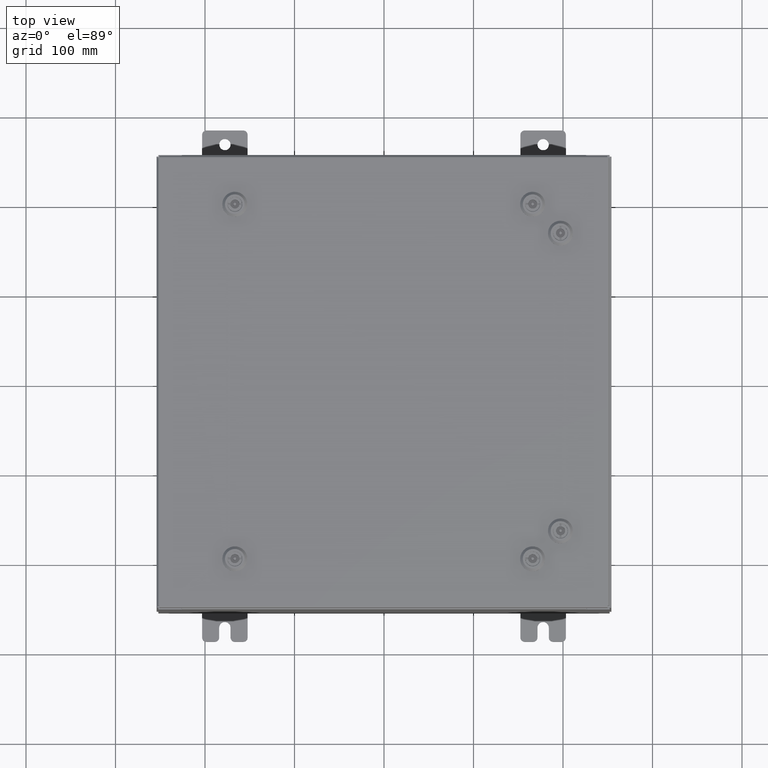
[diagram: clean part render]
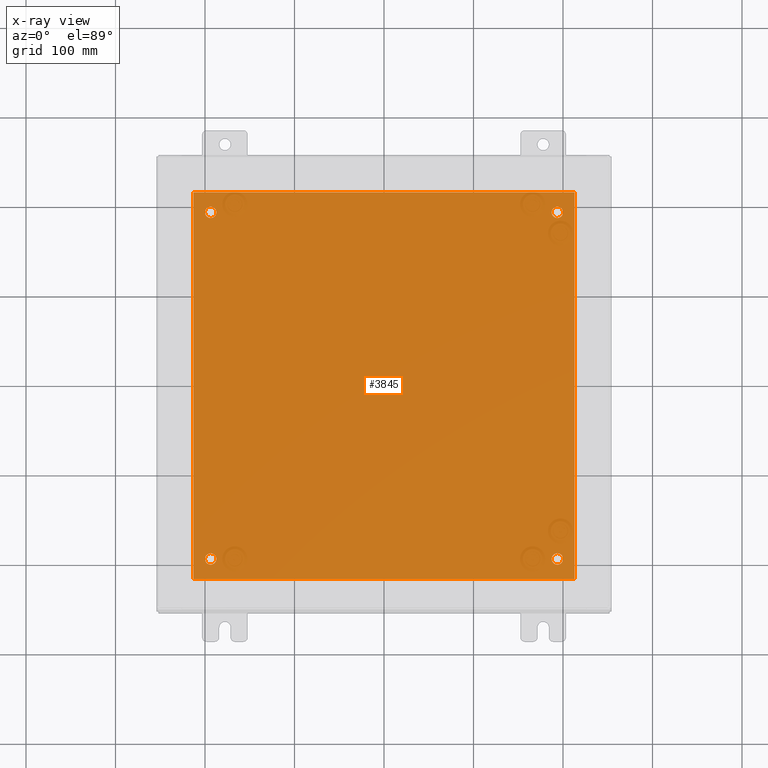
[diagram: x-ray — body ghosted, one internal face saturated and labeled with its STEP entity id]
A machine part, top view, then the same camera in x-ray: the body is ghosted and one INTERNAL B-rep face — a face not visible from any outside direction — is saturated and labeled: STEP entity #3845.
In plain terms, the highlighted planar face has unit normal (0, 0, -1).
Its self-contained STEP definition (entity closure, byte-faithful):
#1960 = EDGE_CURVE ( 'NONE', #34424, #33227, #6848, .T. ) ;
#2134 = CIRCLE ( 'NONE', #51458, 0.2499999999999987000 ) ;
#2156 = EDGE_LOOP ( 'NONE', ( #32737, #52601 ) ) ;
#3088 = CARTESIAN_POINT ( 'NONE',  ( 7.875000000000000900, -7.625000000000000900, -0.1039999999999999800 ) ) ;
#3444 = DIRECTION ( 'NONE',  ( -1.000000000000000000, 0.0000000000000000000, 0.0000000000000000000 ) ) ;
#3471 = AXIS2_PLACEMENT_3D ( 'NONE', #53140, #8552, #42832 ) ;
#3845 = ADVANCED_FACE ( 'NONE', ( #60384, #21230, #22783, #34271, #47393 ), #43288, .T. ) ;
#4306 = DIRECTION ( 'NONE',  ( -1.000000000000000000, 0.0000000000000000000, 0.0000000000000000000 ) ) ;
#6336 = EDGE_CURVE ( 'NONE', #9082, #60980, #20319, .T. ) ;
#6848 = LINE ( 'NONE', #8691, #31334 ) ;
#6980 = EDGE_CURVE ( 'NONE', #30985, #60944, #29466, .T. ) ;
#7672 = VERTEX_POINT ( 'NONE', #30734 ) ;
#7954 = CARTESIAN_POINT ( 'NONE',  ( -8.382999999999999100, 8.500000000000000000, -0.1039999999999998100 ) ) ;
#8363 = AXIS2_PLACEMENT_3D ( 'NONE', #44407, #15019, #49378 ) ;
#8552 = DIRECTION ( 'NONE',  ( -0.0000000000000000000, -0.0000000000000000000, 1.000000000000000000 ) ) ;
#8691 = CARTESIAN_POINT ( 'NONE',  ( -8.500000000000000000, 8.500000000000000000, -0.1039999999999999800 ) ) ;
#9082 = VERTEX_POINT ( 'NONE', #57461 ) ;
#9147 = ORIENTED_EDGE ( 'NONE', *, *, #9523, .F. ) ;
#9523 = EDGE_CURVE ( 'NONE', #33880, #34424, #29412, .T. ) ;
#10133 = ORIENTED_EDGE ( 'NONE', *, *, #43338, .T. ) ;
#10751 = ORIENTED_EDGE ( 'NONE', *, *, #31140, .F. ) ;
#12454 = EDGE_LOOP ( 'NONE', ( #43379, #10751, #43217, #9147 ) ) ;
#12856 = DIRECTION ( 'NONE',  ( 0.0000000000000000000, -1.000000000000000000, 0.0000000000000000000 ) ) ;
#15019 = DIRECTION ( 'NONE',  ( -0.0000000000000000000, -0.0000000000000000000, 1.000000000000000000 ) ) ;
#15765 = ORIENTED_EDGE ( 'NONE', *, *, #45169, .T. ) ;
#15879 = CARTESIAN_POINT ( 'NONE',  ( 7.875000000000000900, 7.625000000000000900, -0.1039999999999999800 ) ) ;
#15894 = CARTESIAN_POINT ( 'NONE',  ( -7.625000000000001800, -7.625000000000000900, -0.1039999999999999800 ) ) ;
#16401 = VECTOR ( 'NONE', #35081, 39.37007874015748100 ) ;
#19961 = EDGE_CURVE ( 'NONE', #60980, #9082, #2134, .T. ) ;
#20297 = CARTESIAN_POINT ( 'NONE',  ( 8.383000000000000900, -8.499999999999998200, -0.1039999999999998100 ) ) ;
#20319 = CIRCLE ( 'NONE', #50093, 0.2499999999999987000 ) ;
#20654 = VERTEX_POINT ( 'NONE', #63489 ) ;
#20740 = EDGE_CURVE ( 'NONE', #45754, #20654, #45801, .T. ) ;
#20794 = DIRECTION ( 'NONE',  ( -1.000000000000000000, 0.0000000000000000000, 0.0000000000000000000 ) ) ;
#21017 = AXIS2_PLACEMENT_3D ( 'NONE', #15894, #50224, #20794 ) ;
#21230 = FACE_BOUND ( 'NONE', #2156, .T. ) ;
#21891 = CARTESIAN_POINT ( 'NONE',  ( -7.625000000000001800, -7.625000000000000900, -0.1039999999999999800 ) ) ;
#22250 = CARTESIAN_POINT ( 'NONE',  ( 7.625000000000001800, 7.625000000000000900, -0.1039999999999999800 ) ) ;
#22321 = EDGE_CURVE ( 'NONE', #49553, #7672, #31837, .T. ) ;
#22332 = ORIENTED_EDGE ( 'NONE', *, *, #22321, .T. ) ;
#22783 = FACE_BOUND ( 'NONE', #62278, .T. ) ;
#23065 = EDGE_CURVE ( 'NONE', #31189, #33880, #24887, .T. ) ;
#23280 = DIRECTION ( 'NONE',  ( -0.0000000000000000000, -0.0000000000000000000, 1.000000000000000000 ) ) ;
#23340 = VECTOR ( 'NONE', #62691, 39.37007874015748100 ) ;
#24268 = DIRECTION ( 'NONE',  ( -1.000000000000000000, -0.0000000000000000000, -0.0000000000000000000 ) ) ;
#24887 = LINE ( 'NONE', #57980, #23340 ) ;
#26743 = CIRCLE ( 'NONE', #44553, 0.2499999999999987000 ) ;
#26802 = DIRECTION ( 'NONE',  ( -1.000000000000000000, 0.0000000000000000000, 0.0000000000000000000 ) ) ;
#26895 = EDGE_CURVE ( 'NONE', #7672, #49553, #36800, .T. ) ;
#27172 = DIRECTION ( 'NONE',  ( -1.000000000000000000, 0.0000000000000000000, 0.0000000000000000000 ) ) ;
#29412 = LINE ( 'NONE', #20297, #16401 ) ;
#29466 = CIRCLE ( 'NONE', #54219, 0.2499999999999998100 ) ;
#30734 = CARTESIAN_POINT ( 'NONE',  ( -7.375000000000001800, 7.625000000000000900, -0.1039999999999999800 ) ) ;
#30985 = VERTEX_POINT ( 'NONE', #55531 ) ;
#31140 = EDGE_CURVE ( 'NONE', #33227, #31189, #47443, .T. ) ;
#31189 = VERTEX_POINT ( 'NONE', #52312 ) ;
#31334 = VECTOR ( 'NONE', #24268, 39.37007874015748100 ) ;
#31837 = CIRCLE ( 'NONE', #3471, 0.2499999999999998100 ) ;
#32737 = ORIENTED_EDGE ( 'NONE', *, *, #19961, .T. ) ;
#32744 = DIRECTION ( 'NONE',  ( -0.0000000000000000000, -0.0000000000000000000, 1.000000000000000000 ) ) ;
#33227 = VERTEX_POINT ( 'NONE', #50144 ) ;
#33362 = DIRECTION ( 'NONE',  ( 0.0000000000000000000, 0.0000000000000000000, -1.000000000000000000 ) ) ;
#33609 = DIRECTION ( 'NONE',  ( -0.0000000000000000000, -0.0000000000000000000, 1.000000000000000000 ) ) ;
#33880 = VERTEX_POINT ( 'NONE', #36815 ) ;
#34271 = FACE_BOUND ( 'NONE', #56132, .T. ) ;
#34316 = VECTOR ( 'NONE', #12856, 39.37007874015748100 ) ;
#34424 = VERTEX_POINT ( 'NONE', #38267 ) ;
#35081 = DIRECTION ( 'NONE',  ( 0.0000000000000000000, 1.000000000000000000, 0.0000000000000000000 ) ) ;
#36800 = CIRCLE ( 'NONE', #53338, 0.2499999999999998100 ) ;
#36815 = CARTESIAN_POINT ( 'NONE',  ( 8.383000000000000900, -8.499999999999998200, -0.1039999999999999800 ) ) ;
#37451 = EDGE_LOOP ( 'NONE', ( #62487, #10133 ) ) ;
#37656 = AXIS2_PLACEMENT_3D ( 'NONE', #52950, #33362, #53165 ) ;
#38267 = CARTESIAN_POINT ( 'NONE',  ( 8.383000000000000900, 8.500000000000000000, -0.1039999999999999800 ) ) ;
#38366 = CIRCLE ( 'NONE', #21017, 0.2499999999999998100 ) ;
#38892 = CARTESIAN_POINT ( 'NONE',  ( -7.875000000000001800, 7.625000000000000900, -0.1039999999999999800 ) ) ;
#41637 = CARTESIAN_POINT ( 'NONE',  ( -7.875000000000001800, -7.625000000000000900, -0.1039999999999999800 ) ) ;
#42832 = DIRECTION ( 'NONE',  ( -1.000000000000000000, 0.0000000000000000000, 0.0000000000000000000 ) ) ;
#43217 = ORIENTED_EDGE ( 'NONE', *, *, #1960, .F. ) ;
#43288 = PLANE ( 'NONE',  #37656 ) ;
#43338 = EDGE_CURVE ( 'NONE', #60944, #30985, #38366, .T. ) ;
#43379 = ORIENTED_EDGE ( 'NONE', *, *, #23065, .F. ) ;
#44407 = CARTESIAN_POINT ( 'NONE',  ( 7.625000000000001800, 7.625000000000000900, -0.1039999999999999800 ) ) ;
#44553 = AXIS2_PLACEMENT_3D ( 'NONE', #22250, #56598, #27172 ) ;
#44900 = ORIENTED_EDGE ( 'NONE', *, *, #20740, .T. ) ;
#45169 = EDGE_CURVE ( 'NONE', #20654, #45754, #26743, .T. ) ;
#45754 = VERTEX_POINT ( 'NONE', #15879 ) ;
#45801 = CIRCLE ( 'NONE', #8363, 0.2499999999999987000 ) ;
#47393 = FACE_OUTER_BOUND ( 'NONE', #12454, .T. ) ;
#47443 = LINE ( 'NONE', #7954, #34316 ) ;
#47694 = ORIENTED_EDGE ( 'NONE', *, *, #26895, .T. ) ;
#49378 = DIRECTION ( 'NONE',  ( -1.000000000000000000, 0.0000000000000000000, 0.0000000000000000000 ) ) ;
#49553 = VERTEX_POINT ( 'NONE', #38892 ) ;
#50093 = AXIS2_PLACEMENT_3D ( 'NONE', #62161, #32744, #3444 ) ;
#50144 = CARTESIAN_POINT ( 'NONE',  ( -8.382999999999999100, 8.500000000000000000, -0.1039999999999998100 ) ) ;
#50224 = DIRECTION ( 'NONE',  ( -0.0000000000000000000, -0.0000000000000000000, 1.000000000000000000 ) ) ;
#51458 = AXIS2_PLACEMENT_3D ( 'NONE', #52719, #23280, #57628 ) ;
#52312 = CARTESIAN_POINT ( 'NONE',  ( -8.382999999999999100, -8.499999999999998200, -0.1039999999999998100 ) ) ;
#52601 = ORIENTED_EDGE ( 'NONE', *, *, #6336, .T. ) ;
#52719 = CARTESIAN_POINT ( 'NONE',  ( 7.625000000000001800, -7.625000000000000900, -0.1039999999999999800 ) ) ;
#52950 = CARTESIAN_POINT ( 'NONE',  ( 0.0000000000000000000, 0.0000000000000000000, -0.1039999999999999800 ) ) ;
#53140 = CARTESIAN_POINT ( 'NONE',  ( -7.625000000000001800, 7.625000000000000900, -0.1039999999999999800 ) ) ;
#53165 = DIRECTION ( 'NONE',  ( -1.000000000000000000, 0.0000000000000000000, -0.0000000000000000000 ) ) ;
#53338 = AXIS2_PLACEMENT_3D ( 'NONE', #63018, #33609, #4306 ) ;
#54219 = AXIS2_PLACEMENT_3D ( 'NONE', #21891, #56239, #26802 ) ;
#55531 = CARTESIAN_POINT ( 'NONE',  ( -7.375000000000001800, -7.625000000000000900, -0.1039999999999999800 ) ) ;
#56132 = EDGE_LOOP ( 'NONE', ( #47694, #22332 ) ) ;
#56239 = DIRECTION ( 'NONE',  ( -0.0000000000000000000, -0.0000000000000000000, 1.000000000000000000 ) ) ;
#56598 = DIRECTION ( 'NONE',  ( -0.0000000000000000000, -0.0000000000000000000, 1.000000000000000000 ) ) ;
#57461 = CARTESIAN_POINT ( 'NONE',  ( 7.375000000000003600, -7.625000000000000900, -0.1039999999999999800 ) ) ;
#57628 = DIRECTION ( 'NONE',  ( -1.000000000000000000, 0.0000000000000000000, 0.0000000000000000000 ) ) ;
#57980 = CARTESIAN_POINT ( 'NONE',  ( -8.500000000000000000, -8.499999999999998200, -0.1039999999999999800 ) ) ;
#60384 = FACE_BOUND ( 'NONE', #37451, .T. ) ;
#60944 = VERTEX_POINT ( 'NONE', #41637 ) ;
#60980 = VERTEX_POINT ( 'NONE', #3088 ) ;
#62161 = CARTESIAN_POINT ( 'NONE',  ( 7.625000000000001800, -7.625000000000000900, -0.1039999999999999800 ) ) ;
#62278 = EDGE_LOOP ( 'NONE', ( #44900, #15765 ) ) ;
#62487 = ORIENTED_EDGE ( 'NONE', *, *, #6980, .T. ) ;
#62691 = DIRECTION ( 'NONE',  ( 1.000000000000000000, 0.0000000000000000000, 0.0000000000000000000 ) ) ;
#63018 = CARTESIAN_POINT ( 'NONE',  ( -7.625000000000001800, 7.625000000000000900, -0.1039999999999999800 ) ) ;
#63489 = CARTESIAN_POINT ( 'NONE',  ( 7.375000000000003600, 7.625000000000000900, -0.1039999999999999800 ) ) ;